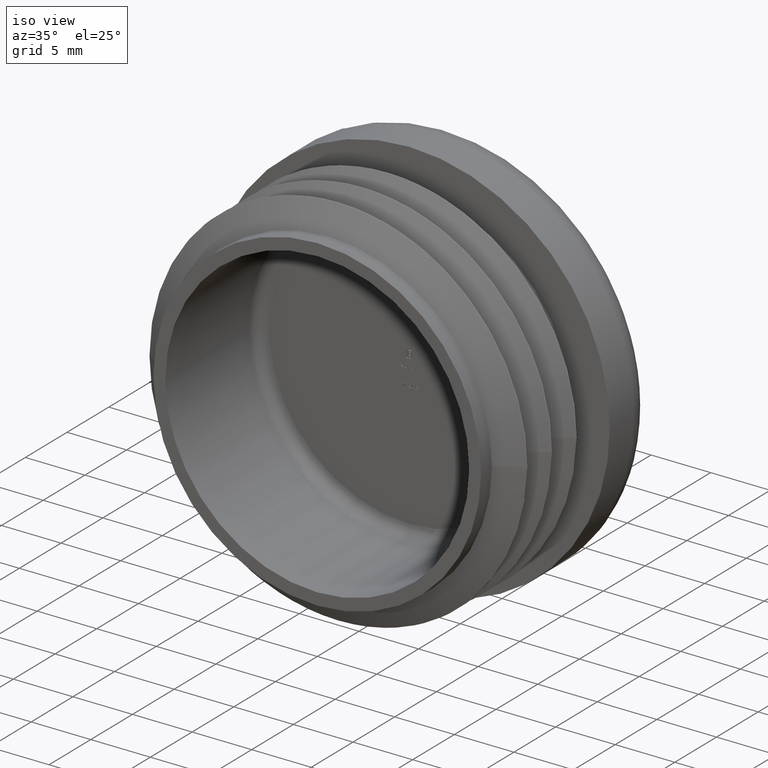
[diagram: clean part render]
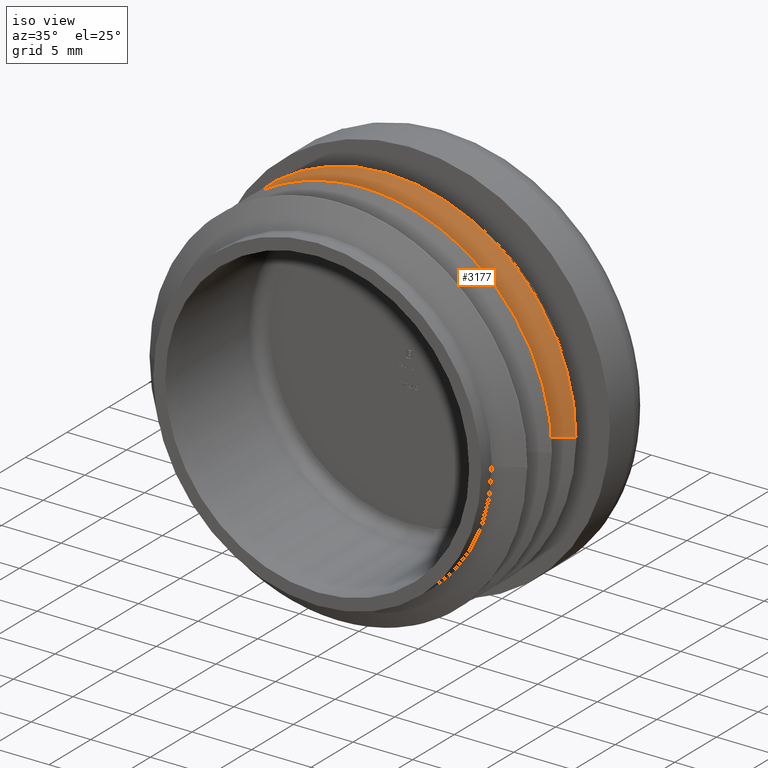
[diagram: same view with one face highlighted and labeled with its STEP entity id]
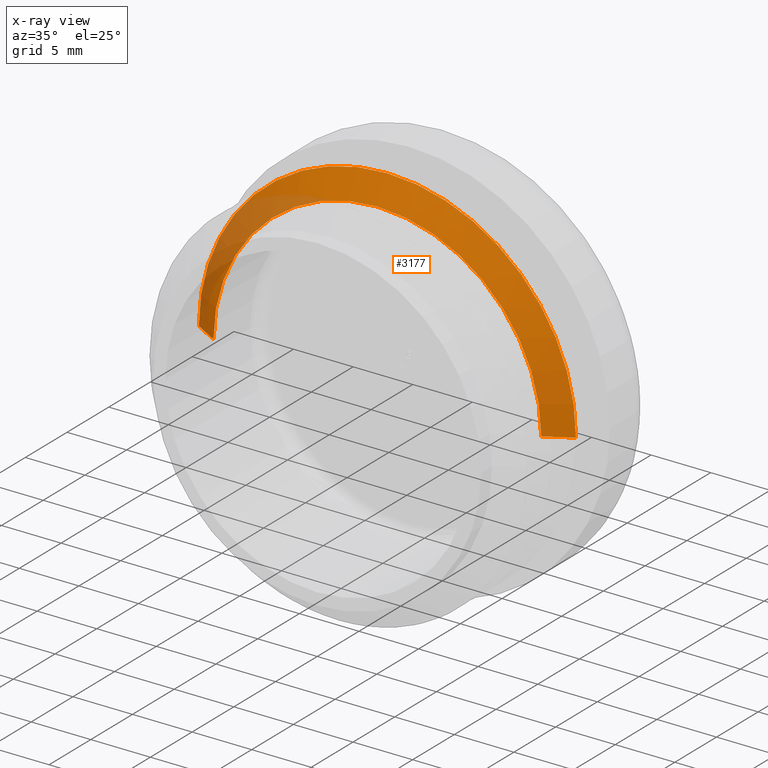
[diagram: x-ray of the same camera — body ghosted, the highlighted face saturated]
A machine part, iso view. The second image highlights one B-rep face of the part: STEP entity #3177.
The next image is the same camera in x-ray: the body ghosted, the highlighted face saturated — about 18% of this face is hidden behind the body in this view.
In plain terms, the highlighted conical surface has half-angle 59.82 deg.
Its self-contained STEP definition (entity closure, byte-faithful):
#185 = CARTESIAN_POINT ( 'NONE',  ( -13.75000000000014744, 7.200000000000033928, 0.000000000000000000 ) ) ;
#335 = ORIENTED_EDGE ( 'NONE', *, *, #7113, .T. ) ;
#441 = FACE_OUTER_BOUND ( 'NONE', #5162, .T. ) ;
#466 = ORIENTED_EDGE ( 'NONE', *, *, #7103, .T. ) ;
#956 = ORIENTED_EDGE ( 'NONE', *, *, #3894, .T. ) ;
#1043 = VERTEX_POINT ( 'NONE', #2833 ) ;
#1286 = VECTOR ( 'NONE', #5132, 1000.000000000000227 ) ;
#1311 = CIRCLE ( 'NONE', #2439, 15.82513574129270850 ) ;
#1603 = AXIS2_PLACEMENT_3D ( 'NONE', #11315, #3443, #10201 ) ;
#1641 = VERTEX_POINT ( 'NONE', #2208 ) ;
#1897 = DIRECTION ( 'NONE',  ( -1.047444401652940164E-14, 1.000000000000000000, 0.000000000000000000 ) ) ;
#2132 = AXIS2_PLACEMENT_3D ( 'NONE', #10843, #3256, #6042 ) ;
#2208 = CARTESIAN_POINT ( 'NONE',  ( 13.74999999999992362, 7.200000000000278177, 1.810954765996130067E-15 ) ) ;
#2439 = AXIS2_PLACEMENT_3D ( 'NONE', #12078, #5956, #3293 ) ;
#2491 = ORIENTED_EDGE ( 'NONE', *, *, #11944, .F. ) ;
#2833 = CARTESIAN_POINT ( 'NONE',  ( -13.75000000000007283, 7.199999999999990408, 0.000000000000000000 ) ) ;
#3177 = ADVANCED_FACE ( 'NONE', ( #441 ), #3379, .T. ) ;
#3180 = CIRCLE ( 'NONE', #4322, 13.74999999999999822 ) ;
#3256 = DIRECTION ( 'NONE',  ( -1.047444401652940164E-14, 1.000000000000000000, 0.000000000000000000 ) ) ;
#3293 = DIRECTION ( 'NONE',  ( 1.000000000000000000, 1.052335072610061949E-14, 0.000000000000000000 ) ) ;
#3334 = VECTOR ( 'NONE', #4484, 1000.000000000000114 ) ;
#3379 = CONICAL_SURFACE ( 'NONE', #2132, 13.75000000000007283, 1.044059893199999367 ) ;
#3443 = DIRECTION ( 'NONE',  ( -1.047444401652940164E-14, 1.000000000000000000, 0.000000000000000000 ) ) ;
#3894 = EDGE_CURVE ( 'NONE', #10901, #8277, #1311, .T. ) ;
#4234 = CARTESIAN_POINT ( 'NONE',  ( 1.683889348826099985E-15, 7.200000000000134293, 13.74999999999999822 ) ) ;
#4322 = AXIS2_PLACEMENT_3D ( 'NONE', #10487, #1897, #9564 ) ;
#4484 = DIRECTION ( 'NONE',  ( 0.8644523143980359370, 0.5027148258524699598, 1.058648759843082507E-16 ) ) ;
#5132 = DIRECTION ( 'NONE',  ( -0.8644523143980464841, 0.5027148258524517521, 0.000000000000000000 ) ) ;
#5162 = EDGE_LOOP ( 'NONE', ( #12102, #335, #956, #2491, #466 ) ) ;
#5956 = DIRECTION ( 'NONE',  ( 1.047444401652940164E-14, -1.000000000000000000, -0.000000000000000000 ) ) ;
#6042 = DIRECTION ( 'NONE',  ( -1.000000000000000000, -1.047142170953267067E-14, 0.000000000000000000 ) ) ;
#6248 = CARTESIAN_POINT ( 'NONE',  ( 15.82513574129262146, 8.406777384280442078, 1.938020183164649481E-15 ) ) ;
#6849 = EDGE_CURVE ( 'NONE', #6977, #1641, #3180, .T. ) ;
#6977 = VERTEX_POINT ( 'NONE', #4234 ) ;
#7103 = EDGE_CURVE ( 'NONE', #1043, #6977, #8920, .T. ) ;
#7113 = EDGE_CURVE ( 'NONE', #1641, #10901, #12013, .T. ) ;
#8255 = CARTESIAN_POINT ( 'NONE',  ( -15.82513574129279554, 8.406777384280108123, 0.000000000000000000 ) ) ;
#8277 = VERTEX_POINT ( 'NONE', #8255 ) ;
#8434 = CARTESIAN_POINT ( 'NONE',  ( 13.74999999999999822, 7.200000000000321698, 1.683889348827619726E-15 ) ) ;
#8920 = CIRCLE ( 'NONE', #1603, 13.74999999999999822 ) ;
#9564 = DIRECTION ( 'NONE',  ( -1.000000000000000000, -1.047142170953272746E-14, 0.000000000000000000 ) ) ;
#10153 = LINE ( 'NONE', #185, #1286 ) ;
#10201 = DIRECTION ( 'NONE',  ( -1.000000000000000000, -1.047142170953272746E-14, 0.000000000000000000 ) ) ;
#10487 = CARTESIAN_POINT ( 'NONE',  ( -7.541599691901309411E-14, 7.200000000000134293, 0.000000000000000000 ) ) ;
#10843 = CARTESIAN_POINT ( 'NONE',  ( -7.541599691901354850E-14, 7.200000000000177813, 0.000000000000000000 ) ) ;
#10901 = VERTEX_POINT ( 'NONE', #6248 ) ;
#11315 = CARTESIAN_POINT ( 'NONE',  ( -7.541599691901309411E-14, 7.200000000000134293, 0.000000000000000000 ) ) ;
#11944 = EDGE_CURVE ( 'NONE', #1043, #8277, #10153, .T. ) ;
#12013 = LINE ( 'NONE', #8434, #3334 ) ;
#12078 = CARTESIAN_POINT ( 'NONE',  ( -8.805631907106921655E-14, 8.406777384280275101, 0.000000000000000000 ) ) ;
#12102 = ORIENTED_EDGE ( 'NONE', *, *, #6849, .T. ) ;